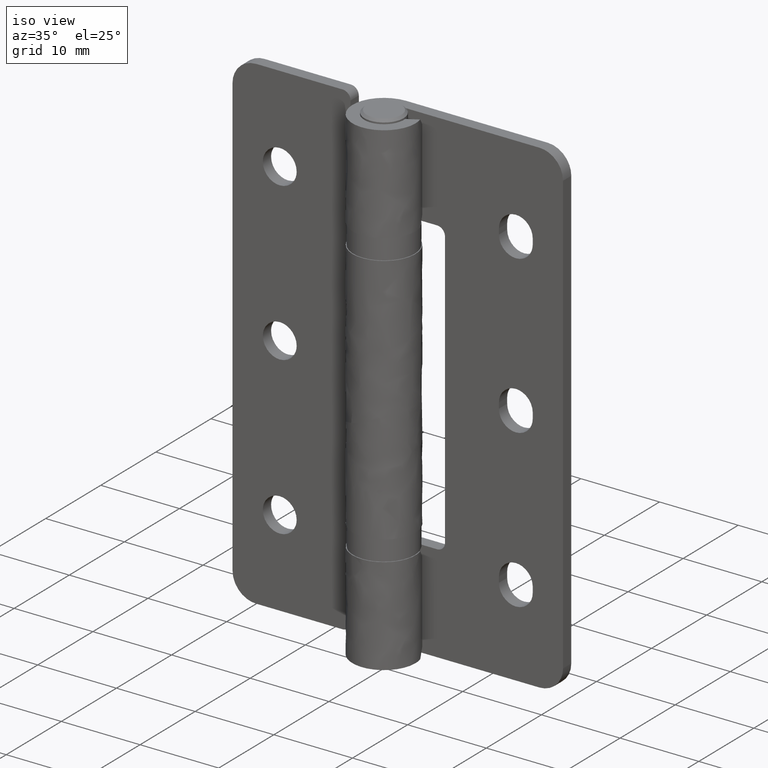
[diagram: clean part render]
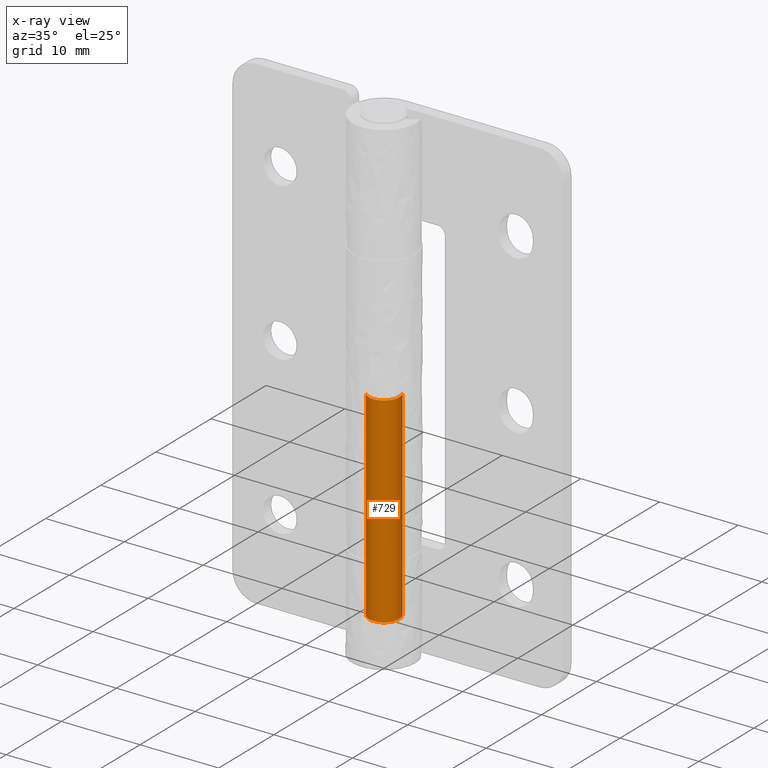
[diagram: x-ray — body ghosted, one internal face saturated and labeled with its STEP entity id]
A machine part, iso view, then the same camera in x-ray: the body is ghosted and one INTERNAL B-rep face — a face not visible from any outside direction — is saturated and labeled: STEP entity #729.
In plain terms, the highlighted face is a freeform B-spline surface patch.
Its self-contained STEP definition (entity closure, byte-faithful):
#538=CARTESIAN_POINT('',(1.396345481611752,1.325082286979159,4.499999999976623));
#539=VERTEX_POINT('',#538);
#549=CARTESIAN_POINT('',(1.924999999999827,0.0,4.499999999975998));
#550=VERTEX_POINT('',#549);
#551=CARTESIAN_POINT('',(1.924999999999827,0.0,4.499999999975998));
#552=CARTESIAN_POINT('',(1.925057462972185,0.167472694292146,4.499999999976176));
#553=CARTESIAN_POINT('',(1.890991016708311,0.426240040115417,4.499999999976062));
#554=CARTESIAN_POINT('',(1.731766977889708,0.887973287039473,4.499999999976595));
#555=CARTESIAN_POINT('',(1.553705118656914,1.159547711918447,4.499999999976339));
#556=CARTESIAN_POINT('',(1.396345481611752,1.325082286979159,4.499999999976623));
#557=B_SPLINE_CURVE_WITH_KNOTS('',3,(#551,#552,#553,#554,#555,#556),.UNSPECIFIED.,.F.,.U.,(4,1,1,4),(0.000000017763347,0.502405565548259,0.776434464043603,1.461529160883788),.UNSPECIFIED.);
#558=EDGE_CURVE('',#550,#539,#557,.T.);
#560=CARTESIAN_POINT('',(0.000001278339762,-1.924999999999406,4.499999999975991));
#561=VERTEX_POINT('',#560);
#562=CARTESIAN_POINT('',(0.000001278339762,-1.924999999999406,4.499999999975991));
#563=CARTESIAN_POINT('',(0.220505401355223,-1.925160274247860,4.499999999975884));
#564=CARTESIAN_POINT('',(0.598374411878508,-1.859322220343593,4.499999999976048));
#565=CARTESIAN_POINT('',(1.051912572069817,-1.630987187718406,4.499999999975941));
#566=CARTESIAN_POINT('',(1.369959491111330,-1.369956981184474,4.499999999976041));
#567=CARTESIAN_POINT('',(1.600854277695184,-1.088598527260938,4.499999999976055));
#568=CARTESIAN_POINT('',(1.783794840820724,-0.756245543871050,4.499999999975849));
#569=CARTESIAN_POINT('',(1.898632977767372,-0.393720147835848,4.499999999976282));
#570=CARTESIAN_POINT('',(1.925014319268279,-0.125988993152319,4.499999999975515));
#571=CARTESIAN_POINT('',(1.924999999999827,0.0,4.499999999975998));
#572=B_SPLINE_CURVE_WITH_KNOTS('',3,(#562,#563,#564,#565,#566,#567,#568,#569,#570,#571),.UNSPECIFIED.,.F.,.U.,(4,1,1,1,1,1,1,4),(0.000000038442665,0.661466941243760,1.133955321854494,1.511929073178975,1.889907174253887,2.220645706595100,2.645879986289221,3.023858087332201),.UNSPECIFIED.);
#573=EDGE_CURVE('',#561,#550,#572,.T.);
#575=CARTESIAN_POINT('',(-1.396345481611760,-1.325082286979159,4.499999999976623));
#576=VERTEX_POINT('',#575);
#577=CARTESIAN_POINT('',(-1.396345481611760,-1.325082286979159,4.499999999976623));
#578=CARTESIAN_POINT('',(-1.250798942711713,-1.478647099952035,4.499999999976978));
#579=CARTESIAN_POINT('',(-1.013738108317542,-1.657393483287187,4.499999999975692));
#580=CARTESIAN_POINT('',(-0.536929104361022,-1.869440266037762,4.499999999977952));
#581=CARTESIAN_POINT('',(-0.227866785734469,-1.925191557621689,4.499999999975856));
#582=CARTESIAN_POINT('',(0.000001278339762,-1.924999999999406,4.499999999975991));
#583=B_SPLINE_CURVE_WITH_KNOTS('',3,(#577,#578,#579,#580,#581,#582),.UNSPECIFIED.,.F.,.U.,(4,1,1,4),(0.000047124174709,0.634720912057806,0.878828399937531,1.562323079435342),.UNSPECIFIED.);
#584=EDGE_CURVE('',#576,#561,#583,.T.);
#619=CARTESIAN_POINT('',(-1.396345481033158,-1.325082287588875,30.0));
#620=VERTEX_POINT('',#619);
#621=CARTESIAN_POINT('',(-1.396345481611760,-1.325082286979159,4.499999999976623));
#622=CARTESIAN_POINT('',(-1.396345481033158,-1.325082287588875,30.0));
#623=QUASI_UNIFORM_CURVE('',1,(#621,#622),.UNSPECIFIED.,.F.,.U.);
#624=EDGE_CURVE('',#576,#620,#623,.T.);
#651=CARTESIAN_POINT('',(1.396345481033157,1.325082287588874,30.0));
#652=VERTEX_POINT('',#651);
#662=CARTESIAN_POINT('',(1.396345481611752,1.325082286979159,4.499999999976623));
#663=CARTESIAN_POINT('',(1.396345481033157,1.325082287588874,30.0));
#664=QUASI_UNIFORM_CURVE('',1,(#662,#663),.UNSPECIFIED.,.F.,.U.);
#665=EDGE_CURVE('',#539,#652,#664,.T.);
#670=CARTESIAN_POINT('',(-1.396345664198533,-1.325082558210359,3.862499999975391));
#671=CARTESIAN_POINT('',(-0.071263105988174,-2.721428222408889,3.862499999975391));
#672=CARTESIAN_POINT('',(1.325082558210356,-1.396345664198530,3.862499999975391));
#673=CARTESIAN_POINT('',(2.721428222408886,-0.071263105988171,3.862499999975391));
#674=CARTESIAN_POINT('',(1.396345664198527,1.325082558210359,3.862499999975391));
#675=CARTESIAN_POINT('',(-1.396345664198530,-1.325082558210359,30.653437500000621));
#676=CARTESIAN_POINT('',(-0.071263105988171,-2.721428222408889,30.653437500000621));
#677=CARTESIAN_POINT('',(1.325082558210359,-1.396345664198530,30.653437500000621));
#678=CARTESIAN_POINT('',(2.721428222408889,-0.071263105988171,30.653437500000621));
#679=CARTESIAN_POINT('',(1.396345664198530,1.325082558210359,30.653437500000621));
#687=(BOUNDED_SURFACE()B_SPLINE_SURFACE(2,1,((#670,#675),(#671,#676),(#672,#677),(#673,#678),(#674,#679)),.UNSPECIFIED.,.F.,.F.,.U.)B_SPLINE_SURFACE_WITH_KNOTS((3,2,3),(2,2),(0.0,3.189444430272549,6.378888860545098),(0.0,26.790937500025230),.UNSPECIFIED.)GEOMETRIC_REPRESENTATION_ITEM()RATIONAL_B_SPLINE_SURFACE(((1.0,1.0),(0.707106781186548,0.707106781186548),(1.0,1.0),(0.707106781186548,0.707106781186548),(1.0,1.0)))REPRESENTATION_ITEM('')SURFACE());
#688=ORIENTED_EDGE('',*,*,#558,.T.);
#689=ORIENTED_EDGE('',*,*,#665,.T.);
#690=CARTESIAN_POINT('',(1.924999999999830,0.0,30.0));
#691=VERTEX_POINT('',#690);
#692=CARTESIAN_POINT('',(1.924999999999830,0.0,30.0));
#693=CARTESIAN_POINT('',(1.925039537070563,0.167468344421623,29.999999999999972));
#694=CARTESIAN_POINT('',(1.883029947092601,0.487145698868681,29.999999999999989));
#695=CARTESIAN_POINT('',(1.701222662392515,0.942825932678189,30.000000000000039));
#696=CARTESIAN_POINT('',(1.511657901473485,1.203636617528638,29.999999999999989));
#697=CARTESIAN_POINT('',(1.396345481033157,1.325082287588874,30.0));
#698=B_SPLINE_CURVE_WITH_KNOTS('',3,(#692,#693,#694,#695,#696,#697),.UNSPECIFIED.,.F.,.U.,(4,1,1,4),(0.000000017763326,0.502405565837215,0.959123613683782,1.461529161724400),.UNSPECIFIED.);
#699=EDGE_CURVE('',#691,#652,#698,.T.);
#700=ORIENTED_EDGE('',*,*,#699,.F.);
#701=CARTESIAN_POINT('',(0.000001278339765,-1.924999999999406,30.0));
#702=VERTEX_POINT('',#701);
#703=CARTESIAN_POINT('',(0.000001278339765,-1.924999999999406,30.0));
#704=CARTESIAN_POINT('',(0.252035667407539,-1.925281802019466,30.000000000000011));
#705=CARTESIAN_POINT('',(0.629784239404220,-1.849677031205931,29.999999999999940));
#706=CARTESIAN_POINT('',(1.076362351220001,-1.610884072870489,30.000000000000050));
#707=CARTESIAN_POINT('',(1.406698726182211,-1.339865444183083,29.999999999999989));
#708=CARTESIAN_POINT('',(1.666493592060202,-0.998367072382841,30.000000000000021));
#709=CARTESIAN_POINT('',(1.871718492858919,-0.535396493566060,30.000000000000039));
#710=CARTESIAN_POINT('',(1.925110904237037,-0.204750842650145,29.999999999999869));
#711=CARTESIAN_POINT('',(1.924999999999830,0.0,30.0));
#712=B_SPLINE_CURVE_WITH_KNOTS('',3,(#703,#704,#705,#706,#707,#708,#709,#710,#711),.UNSPECIFIED.,.F.,.U.,(4,1,1,1,1,1,4),(0.000000038442665,0.755964816336629,1.133955321854494,1.511929073178975,2.031652663071647,2.409637717769020,3.023858087332201),.UNSPECIFIED.);
#713=EDGE_CURVE('',#702,#691,#712,.T.);
#714=ORIENTED_EDGE('',*,*,#713,.F.);
#715=CARTESIAN_POINT('',(-1.396345481033158,-1.325082287588875,30.0));
#716=CARTESIAN_POINT('',(-1.239630054369959,-1.490503839341491,30.000000000000039));
#717=CARTESIAN_POINT('',(-0.986445446808279,-1.676313218198123,29.999999999999961));
#718=CARTESIAN_POINT('',(-0.504418257482056,-1.876214074131396,30.000000000000039));
#719=CARTESIAN_POINT('',(-0.211577829464008,-1.925131857735750,29.999999999999940));
#720=CARTESIAN_POINT('',(0.000001278339765,-1.924999999999406,30.0));
#721=B_SPLINE_CURVE_WITH_KNOTS('',3,(#715,#716,#717,#718,#719,#720),.UNSPECIFIED.,.F.,.U.,(4,1,1,4),(0.000047124174702,0.683541803263812,0.927649291019322,1.562323078594734),.UNSPECIFIED.);
#722=EDGE_CURVE('',#620,#702,#721,.T.);
#723=ORIENTED_EDGE('',*,*,#722,.F.);
#724=ORIENTED_EDGE('',*,*,#624,.F.);
#725=ORIENTED_EDGE('',*,*,#584,.T.);
#726=ORIENTED_EDGE('',*,*,#573,.T.);
#727=EDGE_LOOP('',(#688,#689,#700,#714,#723,#724,#725,#726));
#728=FACE_OUTER_BOUND('',#727,.T.);
#729=ADVANCED_FACE('',(#728),#687,.T.);